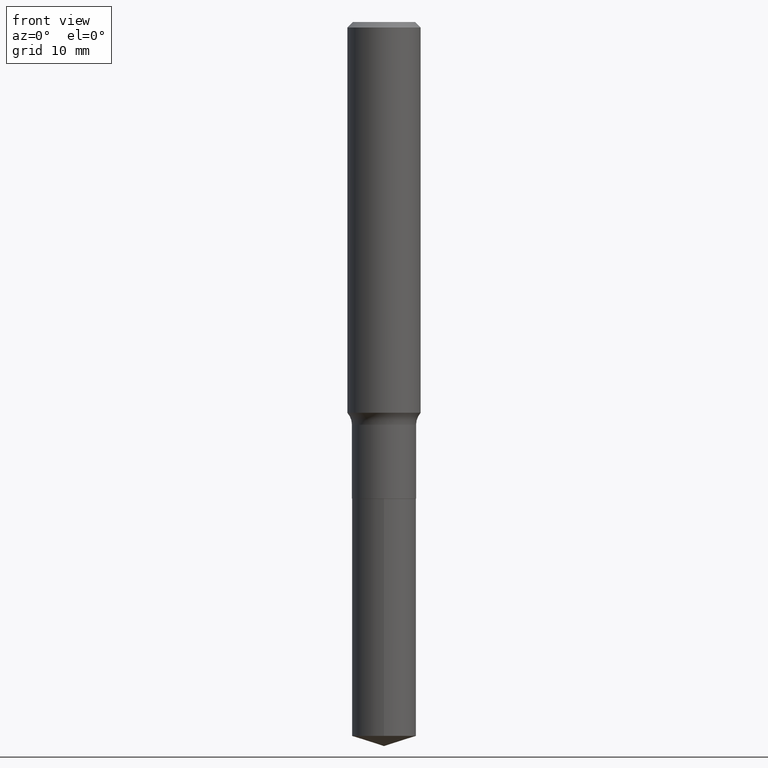
[diagram: clean part render]
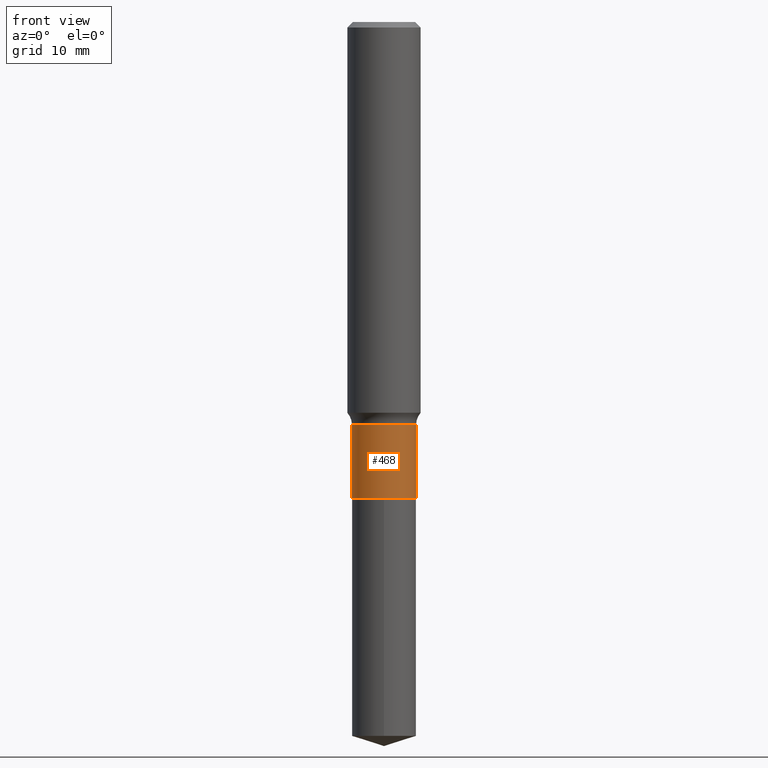
[diagram: same view with one face highlighted and labeled with its STEP entity id]
A machine part, front view. The second image highlights one B-rep face of the part: STEP entity #468.
In plain terms, the highlighted cylindrical surface (edge-blend (fillet) strip) has radius 3.5001 mm, axis along (-0, 0, 1).
Its self-contained STEP definition (entity closure, byte-faithful):
#4 = CYLINDRICAL_SURFACE ( 'NONE', #201, 0.1378000000000000058 ) ;
#6 = CARTESIAN_POINT ( 'NONE',  ( 0.1378000000000000058, -8.108267113195433386E-15, -2.046699999999999964 ) ) ;
#11 = CARTESIAN_POINT ( 'NONE',  ( -0.1378000000000000336, -5.614534618527862586E-15, -2.046699999999999964 ) ) ;
#42 = CARTESIAN_POINT ( 'NONE',  ( 5.005141005619118879E-29, -7.146014856210265909E-15, -2.046699999999999964 ) ) ;
#58 = CARTESIAN_POINT ( 'NONE',  ( -0.1377999999999999781, -5.614534618527862586E-15, -1.730300000000000171 ) ) ;
#59 = VECTOR ( 'NONE', #131, 39.37007874015748143 ) ;
#91 = CARTESIAN_POINT ( 'NONE',  ( 0.1378000000000000058, -9.622522569851674770E-16, 6.719371597046798536E-30 ) ) ;
#107 = CIRCLE ( 'NONE', #377, 0.1377999999999999781 ) ;
#108 = VERTEX_POINT ( 'NONE', #6 ) ;
#114 = CARTESIAN_POINT ( 'NONE',  ( 0.1377999999999999781, -7.003562417585462541E-15, -1.730300000000000171 ) ) ;
#117 = DIRECTION ( 'NONE',  ( 1.000000000000000000, -6.982962677686267499E-15, 0.000000000000000000 ) ) ;
#123 = DIRECTION ( 'NONE',  ( -2.445468806185136597E-29, 3.491481338843145583E-15, 1.000000000000000000 ) ) ;
#126 = EDGE_CURVE ( 'NONE', #108, #408, #430, .T. ) ;
#128 = ORIENTED_EDGE ( 'NONE', *, *, #371, .F. ) ;
#131 = DIRECTION ( 'NONE',  ( -2.445468806185136877E-29, 3.491481338843145188E-15, 1.000000000000000000 ) ) ;
#146 = ORIENTED_EDGE ( 'NONE', *, *, #183, .F. ) ;
#183 = EDGE_CURVE ( 'NONE', #262, #408, #107, .T. ) ;
#195 = ORIENTED_EDGE ( 'NONE', *, *, #485, .T. ) ;
#201 = AXIS2_PLACEMENT_3D ( 'NONE', #457, #123, #271 ) ;
#205 = DIRECTION ( 'NONE',  ( -2.445468806185136597E-29, 3.491481338843145583E-15, 1.000000000000000000 ) ) ;
#246 = LINE ( 'NONE', #295, #59 ) ;
#252 = CIRCLE ( 'NONE', #429, 0.1378000000000000058 ) ;
#262 = VERTEX_POINT ( 'NONE', #58 ) ;
#271 = DIRECTION ( 'NONE',  ( 1.000000000000000000, -6.982962677686265922E-15, 4.876176775795934672E-29 ) ) ;
#290 = EDGE_LOOP ( 'NONE', ( #128, #195, #334, #146 ) ) ;
#295 = CARTESIAN_POINT ( 'NONE',  ( -0.1378000000000000058, 9.791278898774180975E-16, -6.778292554371260034E-30 ) ) ;
#324 = DIRECTION ( 'NONE',  ( -2.445468806185136597E-29, 3.491481338843145583E-15, 1.000000000000000000 ) ) ;
#332 = FACE_OUTER_BOUND ( 'NONE', #290, .T. ) ;
#334 = ORIENTED_EDGE ( 'NONE', *, *, #126, .T. ) ;
#335 = CARTESIAN_POINT ( 'NONE',  ( 4.231394675342142307E-29, -6.041310160600295064E-15, -1.730300000000000171 ) ) ;
#345 = DIRECTION ( 'NONE',  ( -2.445468806185136877E-29, 3.491481338843145188E-15, 1.000000000000000000 ) ) ;
#370 = VERTEX_POINT ( 'NONE', #11 ) ;
#371 = EDGE_CURVE ( 'NONE', #370, #262, #246, .T. ) ;
#377 = AXIS2_PLACEMENT_3D ( 'NONE', #335, #324, #117 ) ;
#389 = VECTOR ( 'NONE', #345, 39.37007874015748143 ) ;
#408 = VERTEX_POINT ( 'NONE', #114 ) ;
#429 = AXIS2_PLACEMENT_3D ( 'NONE', #42, #205, #460 ) ;
#430 = LINE ( 'NONE', #91, #389 ) ;
#457 = CARTESIAN_POINT ( 'NONE',  ( 0.000000000000000000, 0.000000000000000000, 0.000000000000000000 ) ) ;
#460 = DIRECTION ( 'NONE',  ( 1.000000000000000000, -6.982962677686265922E-15, 0.000000000000000000 ) ) ;
#468 = ADVANCED_FACE ( 'NONE', ( #332 ), #4, .T. ) ;
#485 = EDGE_CURVE ( 'NONE', #370, #108, #252, .T. ) ;